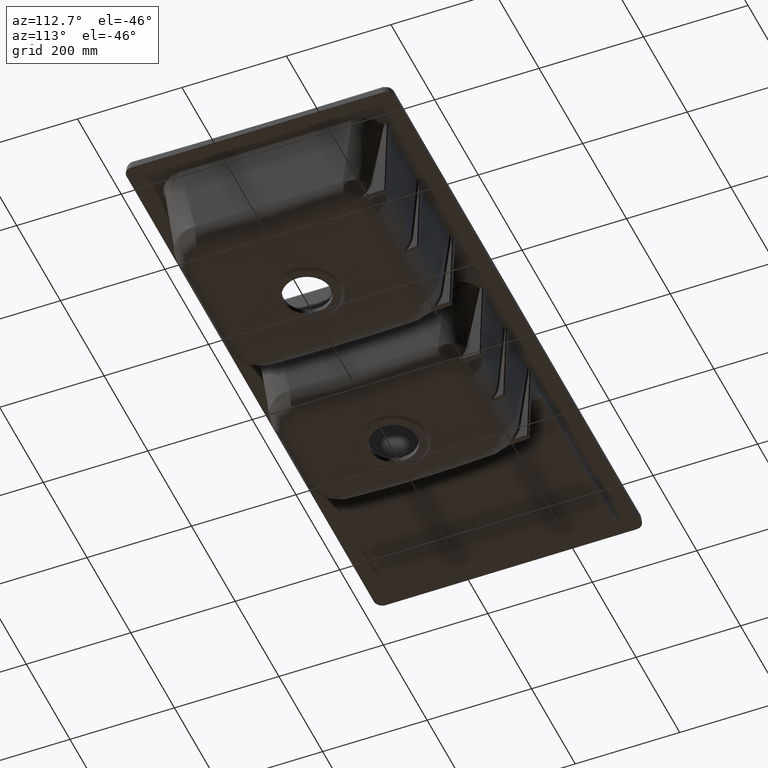
[diagram: clean part render]
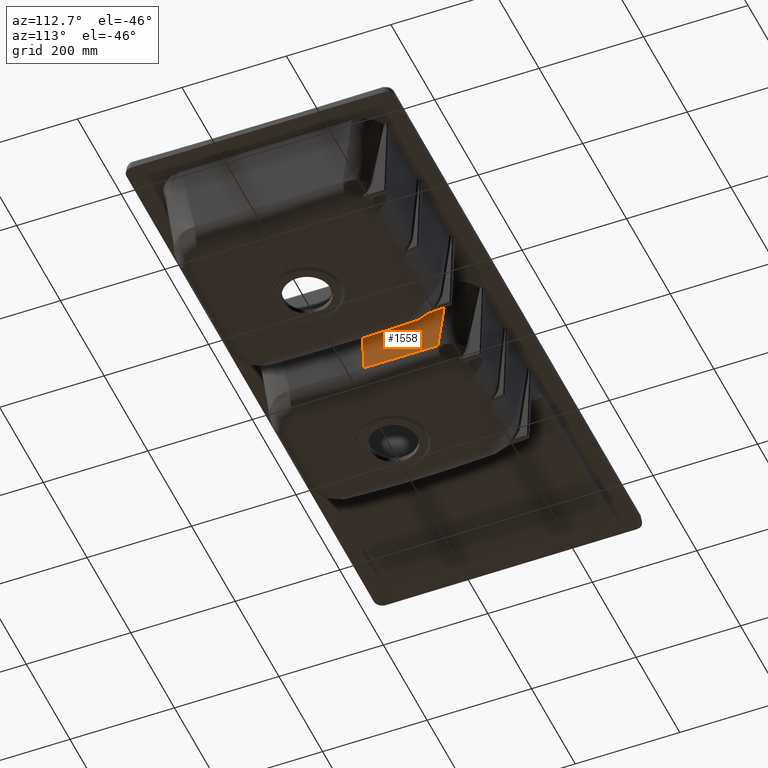
[diagram: same view with one face highlighted and labeled with its STEP entity id]
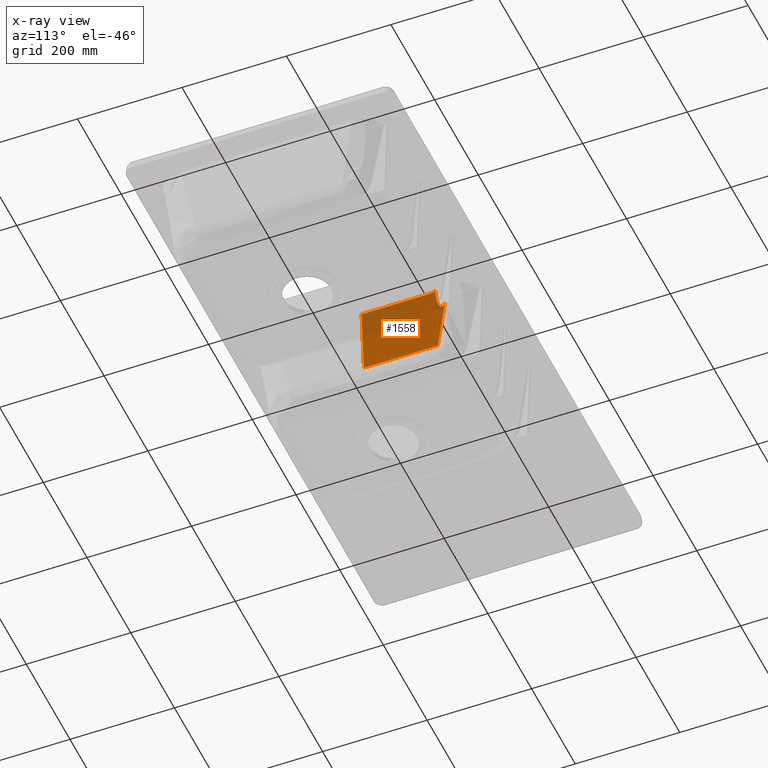
[diagram: x-ray of the same camera — body ghosted, the highlighted face saturated]
A machine part, auxiliary view. The second image highlights one B-rep face of the part: STEP entity #1558.
The next image is the same camera in x-ray: the body ghosted, the highlighted face saturated — about 41% of this face is hidden behind the body in this view.
In plain terms, the highlighted planar face has unit normal (0.9962, -0, -0.0872).
Its self-contained STEP definition (entity closure, byte-faithful):
#48=ELLIPSE('',#8666,37.6822398210985,37.538847522);
#588=LINE('',#32999,#773);
#589=LINE('',#33001,#774);
#599=LINE('',#33343,#784);
#617=LINE('',#38252,#803);
#773=VECTOR('',#9437,1.);
#774=VECTOR('',#9440,1.);
#784=VECTOR('',#9478,1.);
#803=VECTOR('',#9623,1.);
#1183=PLANE('',#8747);
#1558=ADVANCED_FACE('',(#2187),#1183,.T.);
#2187=FACE_OUTER_BOUND('',#2712,.T.);
#2712=EDGE_LOOP('',(#4523,#4524,#4525,#4526,#4527,#4528,#4529,#4530,#4531));
#4523=ORIENTED_EDGE('',*,*,#7048,.T.);
#4524=ORIENTED_EDGE('',*,*,#7086,.T.);
#4525=ORIENTED_EDGE('',*,*,#7251,.F.);
#4526=ORIENTED_EDGE('',*,*,#7153,.T.);
#4527=ORIENTED_EDGE('',*,*,#7252,.F.);
#4528=ORIENTED_EDGE('',*,*,#7050,.T.);
#4529=ORIENTED_EDGE('',*,*,#7053,.T.);
#4530=ORIENTED_EDGE('',*,*,#6357,.T.);
#4531=ORIENTED_EDGE('',*,*,#7054,.T.);
#5558=VERTEX_POINT('',#10058);
#5560=VERTEX_POINT('',#10083);
#5871=VERTEX_POINT('',#28080);
#6001=VERTEX_POINT('',#32912);
#6002=VERTEX_POINT('',#32927);
#6003=VERTEX_POINT('',#32944);
#6028=VERTEX_POINT('',#33342);
#6071=VERTEX_POINT('',#35213);
#6072=VERTEX_POINT('',#35220);
#6357=EDGE_CURVE('',#5558,#5560,#7681,.T.);
#7048=EDGE_CURVE('',#5871,#6001,#48,.T.);
#7050=EDGE_CURVE('',#6003,#6002,#8101,.T.);
#7053=EDGE_CURVE('',#6002,#5558,#588,.T.);
#7054=EDGE_CURVE('',#5560,#5871,#589,.T.);
#7086=EDGE_CURVE('',#6001,#6028,#599,.T.);
#7153=EDGE_CURVE('',#6072,#6071,#8148,.T.);
#7251=EDGE_CURVE('',#6072,#6028,#617,.T.);
#7252=EDGE_CURVE('',#6003,#6071,#8202,.T.);
#7681=B_SPLINE_CURVE_WITH_KNOTS('',3,(#10084,#10085,#10086,#10087,#10088,
#10089,#10090,#10091,#10092,#10093,#10094,#10095,#10096,#10097,#10098,#10099,
#10100,#10101,#10102,#10103,#10104,#10105,#10106,#10107,#10108,#10109,#10110,
#10111,#10112,#10113,#10114),.UNSPECIFIED.,.F.,.F.,(4,2,2,2,2,2,2,2,2,2,
2,1,2,2,2,4),(0.,0.0312500000000003,0.0625000000000007,0.078125000000002,
0.0937500000000032,0.125000000000003,0.156250000000004,0.187500000000004,
0.218750000000004,0.250000000000004,0.312500000000004,0.375000000000004,
0.500000000000002,0.750000000000001,0.875,1.),.UNSPECIFIED.);
#8101=B_SPLINE_CURVE_WITH_KNOTS('',3,(#32928,#32929,#32930,#32931,#32932,
#32933,#32934,#32935,#32936,#32937,#32938,#32939,#32940,#32941,#32942,#32943),
 .UNSPECIFIED.,.F.,.F.,(4,2,2,2,2,2,2,4),(0.,0.249999999999995,0.49999999999999,
0.624999999999989,0.687499999999988,0.749999999999987,0.874999999999993,
1.),.UNSPECIFIED.);
#8148=B_SPLINE_CURVE_WITH_KNOTS('',5,(#35214,#35215,#35216,#35217,#35218,
#35219),.UNSPECIFIED.,.F.,.F.,(6,6),(0.,1.),.UNSPECIFIED.);
#8202=B_SPLINE_CURVE_WITH_KNOTS('',3,(#38253,#38254,#38255,#38256,#38257,
#38258,#38259,#38260),.UNSPECIFIED.,.F.,.F.,(4,2,2,4),(0.,0.403983429378349,
0.590472183969537,1.),.UNSPECIFIED.);
#8666=AXIS2_PLACEMENT_3D('',#32913,#9431,#9432);
#8747=AXIS2_PLACEMENT_3D('',#38261,#9624,#9625);
#9431=DIRECTION('',(-0.996194698091746,2.0588313492706E-16,0.0871557427476584));
#9432=DIRECTION('',(0.0871557427476584,2.35325500047276E-15,0.996194698091746));
#9437=DIRECTION('',(-2.05099687440844E-16,-1.,1.79438975437842E-17));
#9440=DIRECTION('',(0.0868265938782448,-0.0868265920216016,0.992432509298953));
#9478=DIRECTION('',(-3.09158639282995E-16,-1.,-1.17145536458252E-15));
#9623=DIRECTION('',(0.0871557427476584,0.,0.996194698091746));
#9624=DIRECTION('',(0.996194698091746,-2.0588313492706E-16,-0.0871557427476584));
#9625=DIRECTION('',(0.0871557427476584,-1.16573417585641E-15,0.996194698091746));
#10058=CARTESIAN_POINT('',(-24.9537600482142,150.662512232493,-79.1321750839735));
#10083=CARTESIAN_POINT('',(-23.4650976314017,143.245586787049,-62.1166857986515));
#10084=CARTESIAN_POINT('',(-24.9537600482142,150.662512232493,-79.1321750839735));
#10085=CARTESIAN_POINT('',(-24.9537600482142,150.470475002708,-79.1321750839735));
#10086=CARTESIAN_POINT('',(-24.9470083867041,150.295319677251,-79.0550032397829));
#10087=CARTESIAN_POINT('',(-24.9238537906521,149.956884565293,-78.7903449958587));
#10088=CARTESIAN_POINT('',(-24.9142285947828,149.864506606501,-78.6803285036484));
#10089=CARTESIAN_POINT('',(-24.8889818888529,149.615868282006,-78.3917573343969));
#10090=CARTESIAN_POINT('',(-24.8848676311257,149.578260017619,-78.3447311533884));
#10091=CARTESIAN_POINT('',(-24.8712480912709,149.455771557013,-78.1890591005083));
#10092=CARTESIAN_POINT('',(-24.8640750835153,149.39386040847,-78.1070712466946));
#10093=CARTESIAN_POINT('',(-24.8414663467644,149.206126208121,-77.8486522031324));
#10094=CARTESIAN_POINT('',(-24.8301276092381,149.118273094325,-77.7190498401588));
#10095=CARTESIAN_POINT('',(-24.797230394472,148.870304852229,-77.343032954767));
#10096=CARTESIAN_POINT('',(-24.7859835768956,148.788785031566,-77.2144812416295));
#10097=CARTESIAN_POINT('',(-24.7565352305465,148.579832979438,-76.8778851026294));
#10098=CARTESIAN_POINT('',(-24.7412267502421,148.474207583235,-76.7029083720739));
#10099=CARTESIAN_POINT('',(-24.7094411753734,148.260658050552,-76.3395975888518));
#10100=CARTESIAN_POINT('',(-24.6976773903039,148.183635646033,-76.2051369102291));
#10101=CARTESIAN_POINT('',(-24.667489575558,147.988868171728,-75.8600886087775));
#10102=CARTESIAN_POINT('',(-24.6515519207711,147.88782766676,-75.677920380979));
#10103=CARTESIAN_POINT('',(-24.6012077141681,147.57373584841,-75.1024834663659));
#10104=CARTESIAN_POINT('',(-24.5738417222475,147.40858086493,-74.7896887473973));
#10105=CARTESIAN_POINT('',(-24.5122971644616,147.046924716599,-74.0862312329542));
#10106=CARTESIAN_POINT('',(-24.4193645663194,146.517333874818,-73.024006775557));
#10107=CARTESIAN_POINT('',(-24.324584683787,146.026423175183,-71.9406677609623));
#10108=CARTESIAN_POINT('',(-24.1325618728687,145.096175298776,-69.745836988843));
#10109=CARTESIAN_POINT('',(-23.9984454401092,144.533432802677,-68.2128791477412));
#10110=CARTESIAN_POINT('',(-23.8076903537301,143.915545447078,-66.032538533411));
#10111=CARTESIAN_POINT('',(-23.7361763514697,143.718328505638,-65.2151297471948));
#10112=CARTESIAN_POINT('',(-23.6051283500304,143.431557379777,-63.7172442365706));
#10113=CARTESIAN_POINT('',(-23.5326777980486,143.313166952251,-62.8891306380547));
#10114=CARTESIAN_POINT('',(-23.4650976314017,143.245586787049,-62.1166857986515));
#28080=CARTESIAN_POINT('',(-21.4616227068455,141.242111905333,-39.2168626237034));
#32912=CARTESIAN_POINT('',(-21.6823736343392,127.711807879666,-41.7400572708393));
#32913=CARTESIAN_POINT('',(-18.398150034336,127.711807879666,-4.2012097488395));
#32927=CARTESIAN_POINT('',(-24.9537600482142,154.759568526837,-79.1321750839735));
#32928=CARTESIAN_POINT('',(-24.5083197399478,158.394950136615,-74.0407690627302));
#32929=CARTESIAN_POINT('',(-24.5524082638389,158.142093742797,-74.5447031967579));
#32930=CARTESIAN_POINT('',(-24.5936105540116,157.896435453347,-75.0156475284248));
#32931=CARTESIAN_POINT('',(-24.6702426669198,157.419515083182,-75.8915565870372));
#32932=CARTESIAN_POINT('',(-24.7148399941793,157.128767419009,-76.4013063701765));
#32933=CARTESIAN_POINT('',(-24.7717719641255,156.734863126844,-77.0520417643603));
#32934=CARTESIAN_POINT('',(-24.7951092265663,156.568451519839,-77.3187878946623));
#32935=CARTESIAN_POINT('',(-24.8202547886236,156.379639800678,-77.606202984159));
#32936=CARTESIAN_POINT('',(-24.8323495093296,156.286357328252,-77.7444462744169));
#32937=CARTESIAN_POINT('',(-24.8514275650029,156.133240001189,-77.9625094485971));
#32938=CARTESIAN_POINT('',(-24.8605004198222,156.057715466019,-78.0662126537174));
#32939=CARTESIAN_POINT('',(-24.8863204652283,155.834244245593,-78.3613371231681));
#32940=CARTESIAN_POINT('',(-24.906994185387,155.638865551,-78.5976388258754));
#32941=CARTESIAN_POINT('',(-24.9366695147516,155.279680464976,-78.9368293926141));
#32942=CARTESIAN_POINT('',(-24.9537600482142,155.02040298152,-79.1321750839734));
#32943=CARTESIAN_POINT('',(-24.9537600482142,154.759568526837,-79.1321750839734));
#32944=CARTESIAN_POINT('',(-24.508319739949,158.394950136615,-74.0407690627292));
#32999=CARTESIAN_POINT('',(-24.9537600482142,150.676450209426,-79.1321750839735));
#33001=CARTESIAN_POINT('',(-21.1146655063739,140.895154712281,-35.2511236754935));
#33342=CARTESIAN_POINT('',(-21.6823736343392,0.,-41.7400572708394));
#33343=CARTESIAN_POINT('',(-21.6823736343393,-201.9937986,-41.7400572708396));
#35213=CARTESIAN_POINT('',(-32.6522575023824,141.341059864243,-167.126403637791));
#35214=CARTESIAN_POINT('',(-32.6368421791633,-142.058596640395,-166.950205687132));
#35215=CARTESIAN_POINT('',(-32.6399252438071,-85.3786653394695,-166.985445277264));
#35216=CARTESIAN_POINT('',(-32.6430083084509,-28.6987340385357,-167.020684867395));
#35217=CARTESIAN_POINT('',(-32.6460913730948,27.9811972623836,-167.055924457528));
#35218=CARTESIAN_POINT('',(-32.6491744377385,84.6611285633173,-167.091164047659));
#35219=CARTESIAN_POINT('',(-32.6522575023824,141.341059864243,-167.126403637791));
#35220=CARTESIAN_POINT('',(-32.6445693557247,-4.09015269570157E-15,-167.038527719382));
#38252=CARTESIAN_POINT('',(-19.0526892911967,0.,-11.6826276889676));
#38253=CARTESIAN_POINT('',(15.8121010855817,242.828310576353,386.823749842419));
#38254=CARTESIAN_POINT('',(3.97754143395127,218.046038460805,251.554114044134));
#38255=CARTESIAN_POINT('',(-7.85701821767921,193.263766345256,116.284478245849));
#38256=CARTESIAN_POINT('',(-25.1547036563348,157.041383753196,-81.428971034697));
#38257=CARTESIAN_POINT('',(-30.6178294433598,145.601273276684,-143.872784516958));
#38258=CARTESIAN_POINT('',(-48.0779358374172,109.038771539296,-343.442713812811));
#38259=CARTESIAN_POINT('',(-60.0749164444495,83.9163802784203,-480.568829626403));
#38260=CARTESIAN_POINT('',(-72.0718970514819,58.7939890175447,-617.694945439996));
#38261=CARTESIAN_POINT('',(-19.0526892911967,-201.9937986,-11.6826276889676));